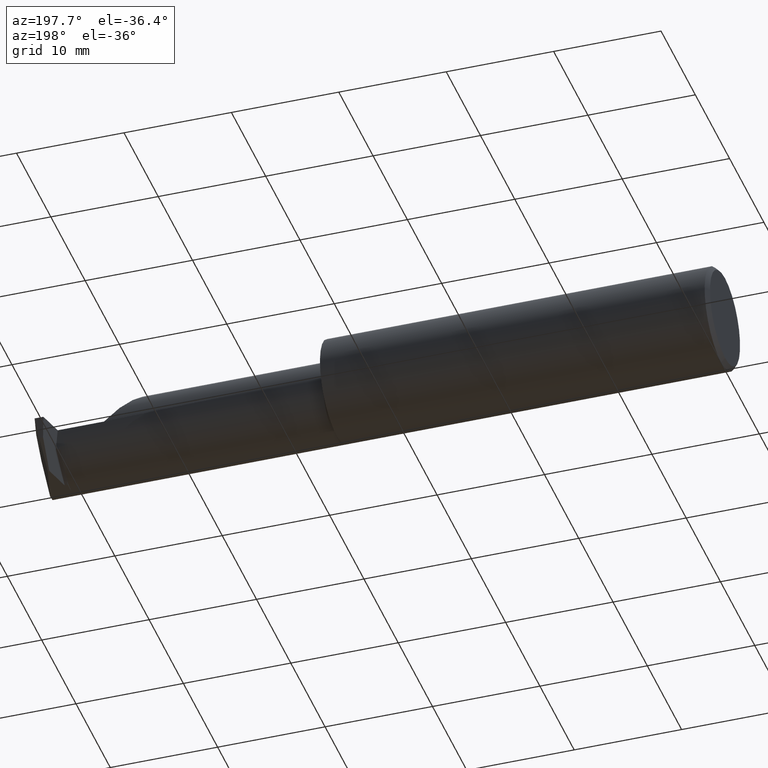
[diagram: clean part render]
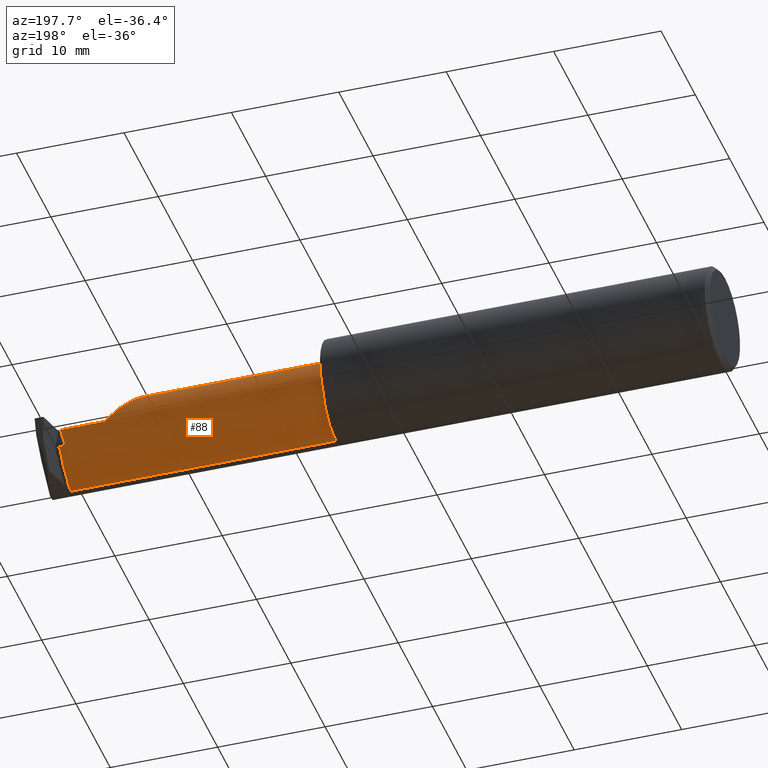
[diagram: same view with one face highlighted and labeled with its STEP entity id]
A machine part, auxiliary view. The second image highlights one B-rep face of the part: STEP entity #88.
In plain terms, the highlighted cylindrical surface (partial cylindrical patch) has radius 3.937 mm, axis along (-1, -0, -0).
Its self-contained STEP definition (entity closure, byte-faithful):
#4 = CARTESIAN_POINT ( 'NONE',  ( 2.416847974081296702, -0.07535000000000005582, 0.000000000000000000 ) ) ;
#18 = VERTEX_POINT ( 'NONE', #585 ) ;
#27 = CIRCLE ( 'NONE', #593, 0.1549999999999999989 ) ;
#42 = CARTESIAN_POINT ( 'NONE',  ( 2.419999999999999929, -0.02721703491516649920, -0.1473370885830929677 ) ) ;
#62 = ORIENTED_EDGE ( 'NONE', *, *, #926, .T. ) ;
#67 = CARTESIAN_POINT ( 'NONE',  ( 2.095349999999999380, -0.07535000000000005582, 0.1549999999999999989 ) ) ;
#74 = VERTEX_POINT ( 'NONE', #314 ) ;
#84 = ORIENTED_EDGE ( 'NONE', *, *, #580, .F. ) ;
#85 = EDGE_CURVE ( 'NONE', #370, #316, #27, .T. ) ;
#88 = ADVANCED_FACE ( 'NONE', ( #683 ), #618, .T. ) ;
#98 =( BOUNDED_CURVE ( )  B_SPLINE_CURVE ( 3, ( #695, #977, #843, #906 ),
 .UNSPECIFIED., .F., .T. ) 
 B_SPLINE_CURVE_WITH_KNOTS ( ( 4, 4 ),
 ( 4.714647046819741227, 6.283185307179586232 ),
 .UNSPECIFIED. ) 
 CURVE ( )  GEOMETRIC_REPRESENTATION_ITEM ( )  RATIONAL_B_SPLINE_CURVE ( ( 1.000000000000000000, 0.8052697849207437475, 0.8052697849207437475, 1.000000000000000000 ) ) 
 REPRESENTATION_ITEM ( '' )  );
#126 = CARTESIAN_POINT ( 'NONE',  ( 1.425000000000000266, -0.02721703491516655818, -0.1473370885830930233 ) ) ;
#142 = DIRECTION ( 'NONE',  ( -1.000000000000000000, -0.000000000000000000, -0.000000000000000000 ) ) ;
#145 = DIRECTION ( 'NONE',  ( 0.000000000000000000, 0.000000000000000000, 1.000000000000000000 ) ) ;
#148 = AXIS2_PLACEMENT_3D ( 'NONE', #937, #757, #257 ) ;
#150 = CARTESIAN_POINT ( 'NONE',  ( 2.419999999999999929, -0.07535000000000005582, 0.000000000000000000 ) ) ;
#154 = VERTEX_POINT ( 'NONE', #225 ) ;
#182 = CARTESIAN_POINT ( 'NONE',  ( 2.419999999999999929, -0.07534999999999998643, -0.1549999999999999156 ) ) ;
#207 = AXIS2_PLACEMENT_3D ( 'NONE', #373, #536, #145 ) ;
#220 = ORIENTED_EDGE ( 'NONE', *, *, #347, .F. ) ;
#225 = CARTESIAN_POINT ( 'NONE',  ( 2.416847974081296702, 0.06139050547018883031, -0.07298653412621564085 ) ) ;
#232 = ORIENTED_EDGE ( 'NONE', *, *, #817, .T. ) ;
#233 = CARTESIAN_POINT ( 'NONE',  ( 1.450000000000000178, -0.07535000000000005582, 0.1549999999999999989 ) ) ;
#257 = DIRECTION ( 'NONE',  ( 0.000000000000000000, 0.000000000000000000, -1.000000000000000000 ) ) ;
#258 = DIRECTION ( 'NONE',  ( -1.000000000000000000, -0.000000000000000000, -0.000000000000000000 ) ) ;
#265 = CARTESIAN_POINT ( 'NONE',  ( 2.410465799823614752, 0.07964999999999992919, 0.000000000000000000 ) ) ;
#276 = CARTESIAN_POINT ( 'NONE',  ( 1.425000000000000266, 0.06139050547018883031, -0.07298653412621564085 ) ) ;
#281 = ORIENTED_EDGE ( 'NONE', *, *, #876, .T. ) ;
#300 = CARTESIAN_POINT ( 'NONE',  ( 2.250000000000000000, 0.07964999999999992919, -4.469813191451678053E-17 ) ) ;
#306 = CARTESIAN_POINT ( 'NONE',  ( 1.425000000000000266, -0.07535000000000005582, 0.1549999999999999989 ) ) ;
#309 = VERTEX_POINT ( 'NONE', #714 ) ;
#312 = ORIENTED_EDGE ( 'NONE', *, *, #611, .T. ) ;
#314 = CARTESIAN_POINT ( 'NONE',  ( 2.419999999999999929, 0.06139050547018883031, -0.07298653412621564085 ) ) ;
#316 = VERTEX_POINT ( 'NONE', #182 ) ;
#343 = CARTESIAN_POINT ( 'NONE',  ( 1.450000000000000178, -0.07535000000000004194, -0.1549999999999999989 ) ) ;
#347 = EDGE_CURVE ( 'NONE', #969, #398, #943, .T. ) ;
#350 = CARTESIAN_POINT ( 'NONE',  ( 2.250000000000000000, -0.07535000000000005582, 0.000000000000000000 ) ) ;
#353 = CARTESIAN_POINT ( 'NONE',  ( 1.425000000000000266, 0.07964999999999992919, -4.469813191451678053E-17 ) ) ;
#358 = LINE ( 'NONE', #353, #928 ) ;
#368 = CARTESIAN_POINT ( 'NONE',  ( 1.425000000000000266, -0.07535000000000004194, -0.1549999999999999989 ) ) ;
#370 = VERTEX_POINT ( 'NONE', #42 ) ;
#373 = CARTESIAN_POINT ( 'NONE',  ( 1.425000000000000266, -0.07535000000000005582, 0.000000000000000000 ) ) ;
#393 = VERTEX_POINT ( 'NONE', #343 ) ;
#398 = VERTEX_POINT ( 'NONE', #265 ) ;
#406 = CIRCLE ( 'NONE', #956, 0.1549999999999999989 ) ;
#413 = DIRECTION ( 'NONE',  ( -1.000000000000000000, -0.000000000000000000, -0.000000000000000000 ) ) ;
#431 = LINE ( 'NONE', #126, #707 ) ;
#438 = EDGE_CURVE ( 'NONE', #316, #393, #584, .T. ) ;
#458 = ORIENTED_EDGE ( 'NONE', *, *, #85, .T. ) ;
#468 = VERTEX_POINT ( 'NONE', #829 ) ;
#469 = DIRECTION ( 'NONE',  ( -1.000000000000000000, -0.000000000000000000, -0.000000000000000000 ) ) ;
#471 = ORIENTED_EDGE ( 'NONE', *, *, #647, .F. ) ;
#487 = AXIS2_PLACEMENT_3D ( 'NONE', #778, #258, #489 ) ;
#489 = DIRECTION ( 'NONE',  ( 0.000000000000000000, 0.000000000000000000, 1.000000000000000000 ) ) ;
#531 = CIRCLE ( 'NONE', #487, 0.1549999999999999989 ) ;
#535 = DIRECTION ( 'NONE',  ( 0.000000000000000000, -8.812412882787946089E-16, -1.000000000000000000 ) ) ;
#536 = DIRECTION ( 'NONE',  ( -1.000000000000000000, -0.000000000000000000, -0.000000000000000000 ) ) ;
#547 = DIRECTION ( 'NONE',  ( -1.000000000000000000, -0.000000000000000000, -0.000000000000000000 ) ) ;
#557 = CARTESIAN_POINT ( 'NONE',  ( 2.405941521078382106, 0.07964999999999992919, -0.02154377157077452115 ) ) ;
#577 = CARTESIAN_POINT ( 'NONE',  ( 2.401513823449298979, 0.07522230237091669103, -0.04262764187959411366 ) ) ;
#580 = EDGE_CURVE ( 'NONE', #309, #936, #98, .T. ) ;
#582 = VECTOR ( 'NONE', #413, 39.37007874015748143 ) ;
#584 = LINE ( 'NONE', #368, #881 ) ;
#585 = CARTESIAN_POINT ( 'NONE',  ( 2.419999999999999929, 0.06655594585375997074, -0.06235144369900125216 ) ) ;
#589 = CIRCLE ( 'NONE', #759, 0.1549999999999999989 ) ;
#593 = AXIS2_PLACEMENT_3D ( 'NONE', #150, #547, #614 ) ;
#594 = ORIENTED_EDGE ( 'NONE', *, *, #720, .F. ) ;
#602 = VERTEX_POINT ( 'NONE', #233 ) ;
#611 = EDGE_CURVE ( 'NONE', #154, #468, #589, .T. ) ;
#614 = DIRECTION ( 'NONE',  ( 0.000000000000000000, 0.000000000000000000, 1.000000000000000000 ) ) ;
#617 = LINE ( 'NONE', #306, #715 ) ;
#618 = CYLINDRICAL_SURFACE ( 'NONE', #207, 0.1549999999999999989 ) ;
#620 = EDGE_LOOP ( 'NONE', ( #458, #697, #62, #471, #84, #626, #859, #220, #594, #232, #281, #312, #781 ) ) ;
#626 = ORIENTED_EDGE ( 'NONE', *, *, #792, .T. ) ;
#634 = CARTESIAN_POINT ( 'NONE',  ( 2.397371745677374655, 0.06655594585375997074, -0.06235144369900125216 ) ) ;
#647 = EDGE_CURVE ( 'NONE', #936, #602, #617, .T. ) ;
#655 = DIRECTION ( 'NONE',  ( 0.000000000000000000, 0.000000000000000000, 1.000000000000000000 ) ) ;
#659 = DIRECTION ( 'NONE',  ( 1.000000000000000000, 0.000000000000000000, 0.000000000000000000 ) ) ;
#664 = LINE ( 'NONE', #276, #909 ) ;
#683 = FACE_OUTER_BOUND ( 'NONE', #620, .T. ) ;
#695 = CARTESIAN_POINT ( 'NONE',  ( 2.250000000000000000, 0.07964960483820594794, 0.0003499999999991848933 ) ) ;
#697 = ORIENTED_EDGE ( 'NONE', *, *, #438, .T. ) ;
#707 = VECTOR ( 'NONE', #958, 39.37007874015748143 ) ;
#714 = CARTESIAN_POINT ( 'NONE',  ( 2.250000000000000000, 0.07964960483820594794, 0.0003499999999991848933 ) ) ;
#715 = VECTOR ( 'NONE', #910, 39.37007874015748143 ) ;
#720 = EDGE_CURVE ( 'NONE', #18, #969, #725, .T. ) ;
#725 = LINE ( 'NONE', #932, #582 ) ;
#756 = CIRCLE ( 'NONE', #148, 0.1549999999999999989 ) ;
#757 = DIRECTION ( 'NONE',  ( 1.000000000000000000, 0.000000000000000000, 0.000000000000000000 ) ) ;
#759 = AXIS2_PLACEMENT_3D ( 'NONE', #4, #469, #535 ) ;
#778 = CARTESIAN_POINT ( 'NONE',  ( 2.419999999999999929, -0.07535000000000005582, 0.000000000000000000 ) ) ;
#781 = ORIENTED_EDGE ( 'NONE', *, *, #858, .T. ) ;
#782 = CARTESIAN_POINT ( 'NONE',  ( 2.397371745677374655, 0.06655594585375997074, -0.06235144369900125216 ) ) ;
#792 = EDGE_CURVE ( 'NONE', #309, #940, #406, .T. ) ;
#811 = DIRECTION ( 'NONE',  ( -1.000000000000000000, -0.000000000000000000, -0.000000000000000000 ) ) ;
#817 = EDGE_CURVE ( 'NONE', #18, #74, #531, .T. ) ;
#829 = CARTESIAN_POINT ( 'NONE',  ( 2.416847974081296702, -0.02721703491516656859, -0.1473370885830930233 ) ) ;
#843 = CARTESIAN_POINT ( 'NONE',  ( 2.095349999999998936, 0.01528441802401257592, 0.1550000000000000266 ) ) ;
#858 = EDGE_CURVE ( 'NONE', #468, #370, #431, .T. ) ;
#859 = ORIENTED_EDGE ( 'NONE', *, *, #893, .T. ) ;
#874 = CARTESIAN_POINT ( 'NONE',  ( 2.410465799823614752, 0.07964999999999992919, 0.000000000000000000 ) ) ;
#876 = EDGE_CURVE ( 'NONE', #74, #154, #664, .T. ) ;
#881 = VECTOR ( 'NONE', #142, 39.37007874015748143 ) ;
#893 = EDGE_CURVE ( 'NONE', #940, #398, #358, .T. ) ;
#906 = CARTESIAN_POINT ( 'NONE',  ( 2.095349999999999380, -0.07535000000000005582, 0.1549999999999999989 ) ) ;
#909 = VECTOR ( 'NONE', #811, 39.37007874015748143 ) ;
#910 = DIRECTION ( 'NONE',  ( -1.000000000000000000, -0.000000000000000000, -0.000000000000000000 ) ) ;
#926 = EDGE_CURVE ( 'NONE', #393, #602, #756, .T. ) ;
#928 = VECTOR ( 'NONE', #659, 39.37007874015748143 ) ;
#932 = CARTESIAN_POINT ( 'NONE',  ( 1.425000000000000266, 0.06655594585375997074, -0.06235144369900125216 ) ) ;
#936 = VERTEX_POINT ( 'NONE', #67 ) ;
#937 = CARTESIAN_POINT ( 'NONE',  ( 1.450000000000000178, -0.07535000000000005582, 0.000000000000000000 ) ) ;
#938 = DIRECTION ( 'NONE',  ( -1.000000000000000000, -0.000000000000000000, -0.000000000000000000 ) ) ;
#940 = VERTEX_POINT ( 'NONE', #300 ) ;
#943 =( BOUNDED_CURVE ( )  B_SPLINE_CURVE ( 3, ( #634, #577, #557, #874 ),
 .UNSPECIFIED., .F., .T. ) 
 B_SPLINE_CURVE_WITH_KNOTS ( ( 4, 4 ),
 ( 1.156804228221840702, 1.570796326794896780 ),
 .UNSPECIFIED. ) 
 CURVE ( )  GEOMETRIC_REPRESENTATION_ITEM ( )  RATIONAL_B_SPLINE_CURVE ( ( 1.000000000000000000, 0.9857684695413670983, 0.9857684695413670983, 1.000000000000000000 ) ) 
 REPRESENTATION_ITEM ( '' )  );
#956 = AXIS2_PLACEMENT_3D ( 'NONE', #350, #938, #655 ) ;
#958 = DIRECTION ( 'NONE',  ( 1.000000000000000000, 0.000000000000000000, 0.000000000000000000 ) ) ;
#969 = VERTEX_POINT ( 'NONE', #782 ) ;
#977 = CARTESIAN_POINT ( 'NONE',  ( 2.159365813042176008, 0.07944494647492639228, 0.09098418695782312104 ) ) ;